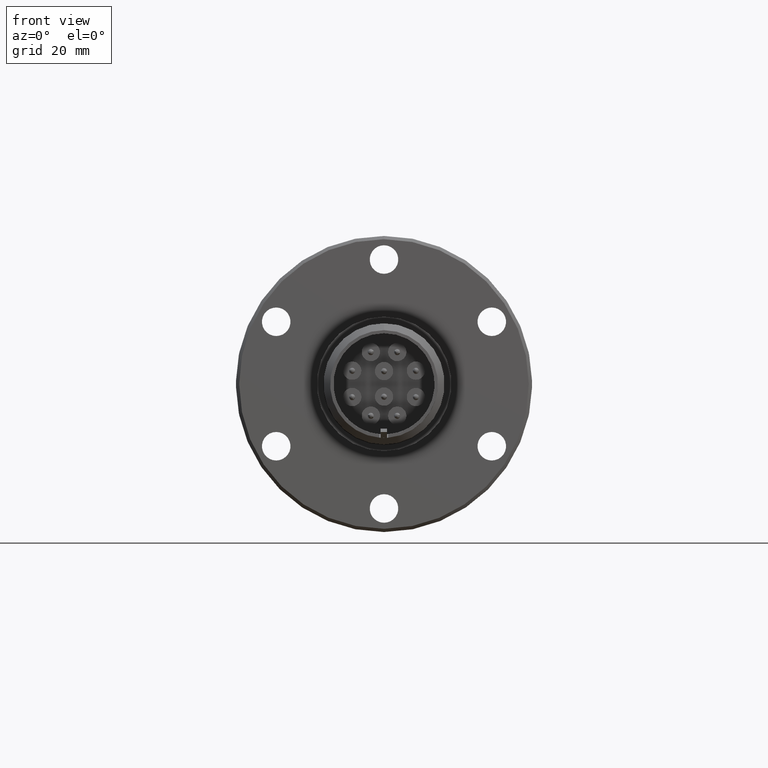
[diagram: clean part render]
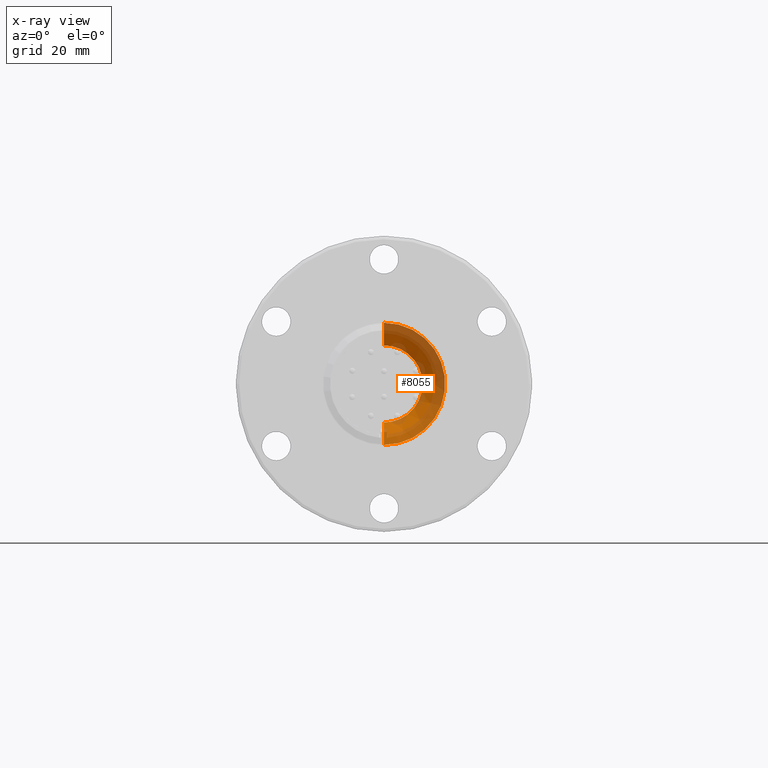
[diagram: x-ray — body ghosted, one internal face saturated and labeled with its STEP entity id]
A machine part, front view, then the same camera in x-ray: the body is ghosted and one INTERNAL B-rep face — a face not visible from any outside direction — is saturated and labeled: STEP entity #8055.
In plain terms, the highlighted conical surface has half-angle 45 deg.
Its self-contained STEP definition (entity closure, byte-faithful):
#841 = LINE ( 'NONE', #4514, #844 ) ;
#844 = VECTOR ( 'NONE', #4510, 39.37007874015748100 ) ;
#846 = LINE ( 'NONE', #4523, #850 ) ;
#850 = VECTOR ( 'NONE', #4522, 39.37007874015748100 ) ;
#1443 = FACE_OUTER_BOUND ( 'NONE', #6464, .T. ) ;
#1453 = CONICAL_SURFACE ( 'NONE', #2401, 0.5675000000000022200, 0.7853981633974507200 ) ;
#1771 = VERTEX_POINT ( 'NONE', #2893 ) ;
#1805 = VERTEX_POINT ( 'NONE', #2823 ) ;
#1988 = ORIENTED_EDGE ( 'NONE', *, *, #12028, .F. ) ;
#1989 = ORIENTED_EDGE ( 'NONE', *, *, #9709, .T. ) ;
#1990 = ORIENTED_EDGE ( 'NONE', *, *, #12029, .F. ) ;
#1991 = ORIENTED_EDGE ( 'NONE', *, *, #10183, .F. ) ;
#1992 = ORIENTED_EDGE ( 'NONE', *, *, #9713, .F. ) ;
#2401 = AXIS2_PLACEMENT_3D ( 'NONE', #11326, #11325, #14323 ) ;
#2823 = CARTESIAN_POINT ( 'NONE',  ( 0.3492711929818794200, 1.160148357596292500, 0.07858397983254919400 ) ) ;
#2893 = CARTESIAN_POINT ( 'NONE',  ( 5.943780147740607900E-017, 1.160148357596292500, 0.3580025253169421600 ) ) ;
#3204 = CARTESIAN_POINT ( 'NONE',  ( -1.760158671144276900E-033, 0.9506508829132343000, -0.5675000000000023400 ) ) ;
#3206 = CARTESIAN_POINT ( 'NONE',  ( 6.949870585161257800E-017, 0.9506508829132343000, 0.5675000000000022200 ) ) ;
#3208 = CARTESIAN_POINT ( 'NONE',  ( 2.767116215796676600E-018, 1.160148357596292500, -0.3580025253169421600 ) ) ;
#3422 = CARTESIAN_POINT ( 'NONE',  ( 5.508306092001473700E-049, 0.9506508829132343000, -2.448199549274852900E-048 ) ) ;
#3423 = DIRECTION ( 'NONE',  ( 2.641670234911369500E-017, 1.000000000000000000, -1.174106117275132700E-016 ) ) ;
#3424 = DIRECTION ( 'NONE',  ( 0.0000000000000000000, 0.0000000000000000000, -1.000000000000000000 ) ) ;
#3427 = CARTESIAN_POINT ( 'NONE',  ( 0.0000000000000000000, 1.160148357596292500, 0.0000000000000000000 ) ) ;
#3428 = DIRECTION ( 'NONE',  ( 0.0000000000000000000, -1.000000000000000000, 0.0000000000000000000 ) ) ;
#3429 = DIRECTION ( 'NONE',  ( -0.9756109755724969900, 0.0000000000000000000, -0.2195067751630474800 ) ) ;
#4510 = DIRECTION ( 'NONE',  ( -1.867942936764484900E-017, -0.7071067811865459100, -0.7071067811865491300 ) ) ;
#4514 = CARTESIAN_POINT ( 'NONE',  ( 5.508306092001473700E-049, 0.9506508829132343000, -0.5675000000000022200 ) ) ;
#4522 = DIRECTION ( 'NONE',  ( 6.791617625590468600E-017, -0.7071067811865456900, 0.7071067811865493500 ) ) ;
#4523 = CARTESIAN_POINT ( 'NONE',  ( 6.949870585161257800E-017, 0.9506508829132343000, 0.5675000000000022200 ) ) ;
#5280 = CIRCLE ( 'NONE', #11253, 0.5675000000000022200 ) ;
#5281 = CIRCLE ( 'NONE', #11254, 0.3580025253169422100 ) ;
#6464 = EDGE_LOOP ( 'NONE', ( #1992, #1991, #1990, #1989, #1988 ) ) ;
#8055 = ADVANCED_FACE ( 'NONE', ( #1443 ), #1453, .F. ) ;
#9709 = EDGE_CURVE ( 'NONE', #11595, #11591, #841, .T. ) ;
#9713 = EDGE_CURVE ( 'NONE', #1771, #11593, #846, .T. ) ;
#10183 = EDGE_CURVE ( 'NONE', #1805, #1771, #10910, .T. ) ;
#10910 = CIRCLE ( 'NONE', #11084, 0.3580025253169422100 ) ;
#11084 = AXIS2_PLACEMENT_3D ( 'NONE', #13375, #13376, #13377 ) ;
#11253 = AXIS2_PLACEMENT_3D ( 'NONE', #3422, #3423, #3424 ) ;
#11254 = AXIS2_PLACEMENT_3D ( 'NONE', #3427, #3428, #3429 ) ;
#11325 = DIRECTION ( 'NONE',  ( -2.641670234911369500E-017, -1.000000000000000000, 1.174106117275132700E-016 ) ) ;
#11326 = CARTESIAN_POINT ( 'NONE',  ( 5.508306092001473700E-049, 0.9506508829132343000, -2.448199549274852900E-048 ) ) ;
#11591 = VERTEX_POINT ( 'NONE', #3204 ) ;
#11593 = VERTEX_POINT ( 'NONE', #3206 ) ;
#11595 = VERTEX_POINT ( 'NONE', #3208 ) ;
#12028 = EDGE_CURVE ( 'NONE', #11593, #11591, #5280, .T. ) ;
#12029 = EDGE_CURVE ( 'NONE', #11595, #1805, #5281, .T. ) ;
#13375 = CARTESIAN_POINT ( 'NONE',  ( 0.0000000000000000000, 1.160148357596292500, 0.0000000000000000000 ) ) ;
#13376 = DIRECTION ( 'NONE',  ( 0.0000000000000000000, -1.000000000000000000, 0.0000000000000000000 ) ) ;
#13377 = DIRECTION ( 'NONE',  ( -0.9756109755724969900, 0.0000000000000000000, -0.2195067751630474800 ) ) ;
#14323 = DIRECTION ( 'NONE',  ( 0.0000000000000000000, 0.0000000000000000000, -1.000000000000000000 ) ) ;